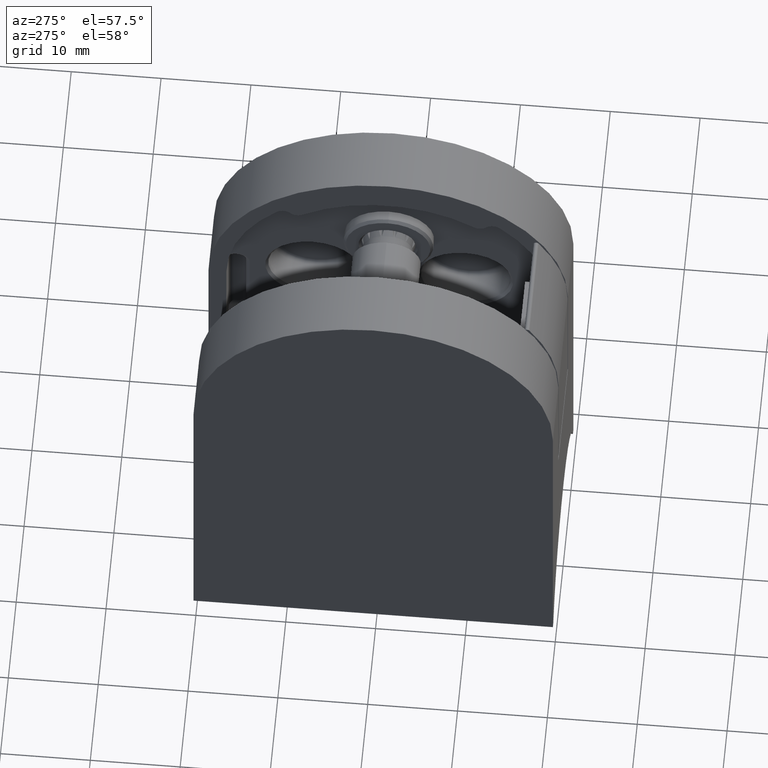
[diagram: clean part render]
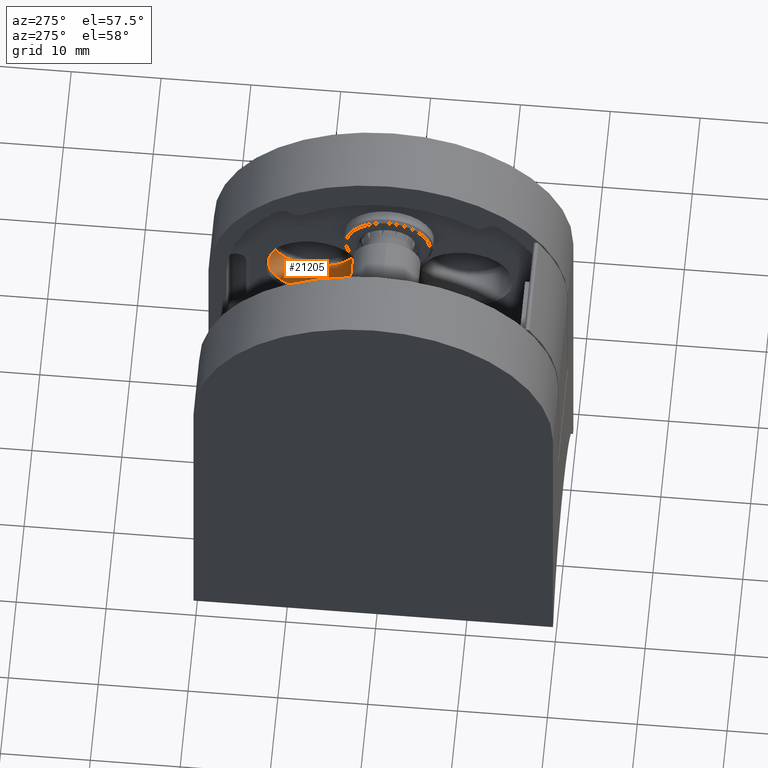
[diagram: same view with one face highlighted and labeled with its STEP entity id]
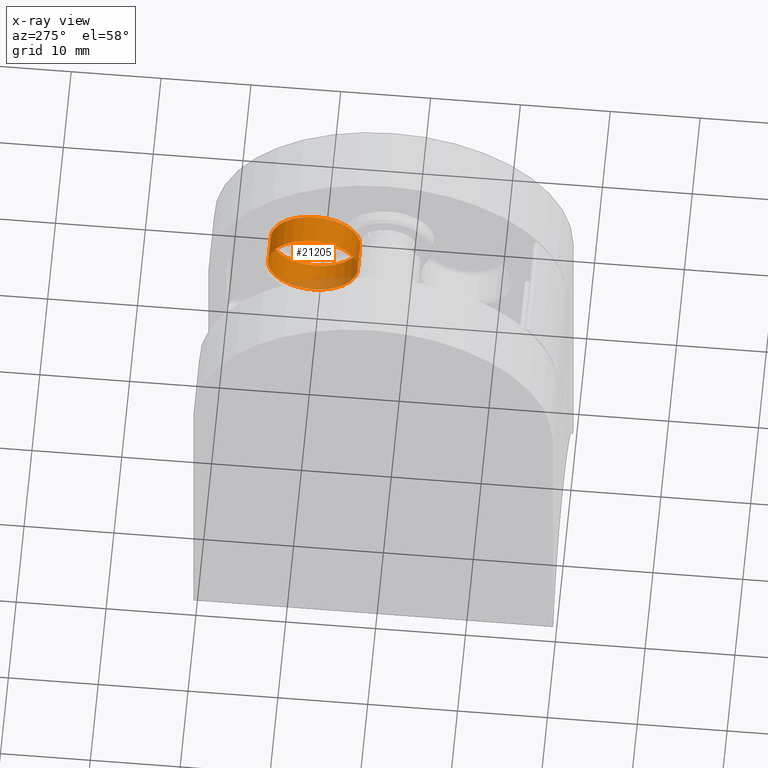
[diagram: x-ray of the same camera — body ghosted, the highlighted face saturated]
A machine part, auxiliary view. The second image highlights one B-rep face of the part: STEP entity #21205.
The next image is the same camera in x-ray: the body ghosted, the highlighted face saturated — about 16% of this face is hidden behind the body in this view.
In plain terms, the highlighted cylindrical surface (bore or boss wall) has radius 5 mm, axis along (-1, -0, -0).
Its self-contained STEP definition (entity closure, byte-faithful):
#1457 = DIRECTION ( 'NONE',  ( 0.000000000000000000, 0.000000000000000000, 1.000000000000000000 ) ) ;
#7716 = EDGE_CURVE ( 'NONE', #11183, #11183, #45037, .T. ) ;
#7865 = ORIENTED_EDGE ( 'NONE', *, *, #7716, .T. ) ;
#11183 = VERTEX_POINT ( 'NONE', #29176 ) ;
#15569 = DIRECTION ( 'NONE',  ( -1.000000000000000000, 0.000000000000000000, 0.000000000000000000 ) ) ;
#20470 = AXIS2_PLACEMENT_3D ( 'NONE', #39955, #39721, #1457 ) ;
#21205 = ADVANCED_FACE ( 'NONE', ( #23286, #31017 ), #71658, .F. ) ;
#21243 = AXIS2_PLACEMENT_3D ( 'NONE', #37838, #15569, #71404 ) ;
#23286 = FACE_OUTER_BOUND ( 'NONE', #48061, .T. ) ;
#23676 = DIRECTION ( 'NONE',  ( 0.000000000000000000, 0.000000000000000000, 1.000000000000000000 ) ) ;
#26883 = EDGE_LOOP ( 'NONE', ( #55500 ) ) ;
#27259 = EDGE_CURVE ( 'NONE', #49315, #49315, #58672, .T. ) ;
#29176 = CARTESIAN_POINT ( 'NONE',  ( 4.800000000000000711, 8.500000000000000000, 9.999999999999994671 ) ) ;
#30403 = CARTESIAN_POINT ( 'NONE',  ( 5.299999999999998934, 8.500000000000000000, 4.999999999999993783 ) ) ;
#31017 = FACE_OUTER_BOUND ( 'NONE', #26883, .T. ) ;
#37838 = CARTESIAN_POINT ( 'NONE',  ( 1.650000000000002132, 8.500000000000000000, 4.999999999999993783 ) ) ;
#39721 = DIRECTION ( 'NONE',  ( 1.000000000000000000, -0.000000000000000000, -0.000000000000000000 ) ) ;
#39955 = CARTESIAN_POINT ( 'NONE',  ( 4.800000000000000711, 8.500000000000000000, 4.999999999999993783 ) ) ;
#40796 = CARTESIAN_POINT ( 'NONE',  ( 1.650000000000002132, 8.500000000000000000, 9.999999999999994671 ) ) ;
#45037 = CIRCLE ( 'NONE', #20470, 5.000000000000000888 ) ;
#48061 = EDGE_LOOP ( 'NONE', ( #7865 ) ) ;
#49315 = VERTEX_POINT ( 'NONE', #40796 ) ;
#55500 = ORIENTED_EDGE ( 'NONE', *, *, #27259, .T. ) ;
#56727 = AXIS2_PLACEMENT_3D ( 'NONE', #30403, #69325, #23676 ) ;
#58672 = CIRCLE ( 'NONE', #21243, 5.000000000000000888 ) ;
#69325 = DIRECTION ( 'NONE',  ( -1.000000000000000000, -0.000000000000000000, -0.000000000000000000 ) ) ;
#71404 = DIRECTION ( 'NONE',  ( 0.000000000000000000, 0.000000000000000000, 1.000000000000000000 ) ) ;
#71658 = CYLINDRICAL_SURFACE ( 'NONE', #56727, 5.000000000000000888 ) ;